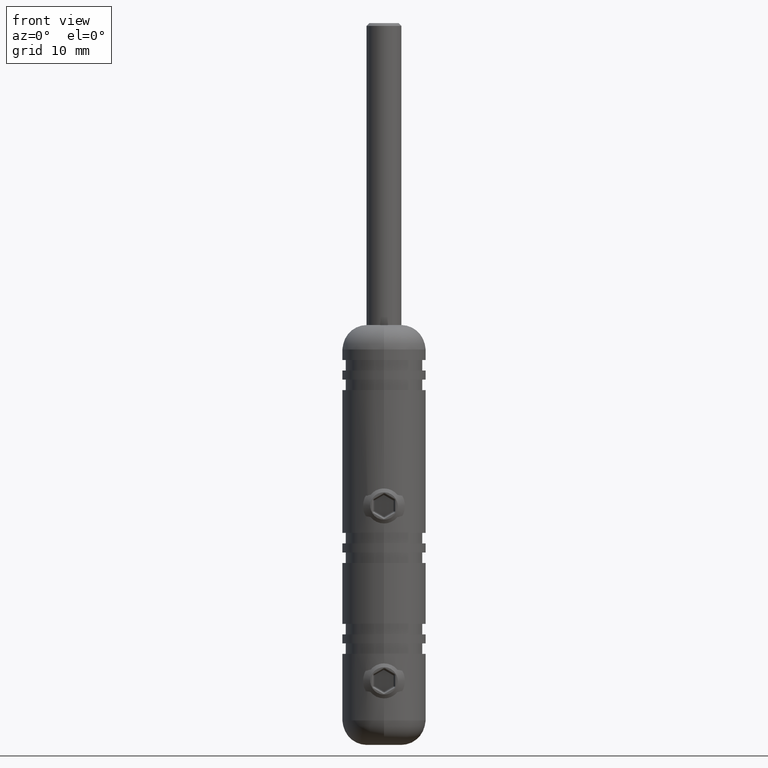
[diagram: clean part render]
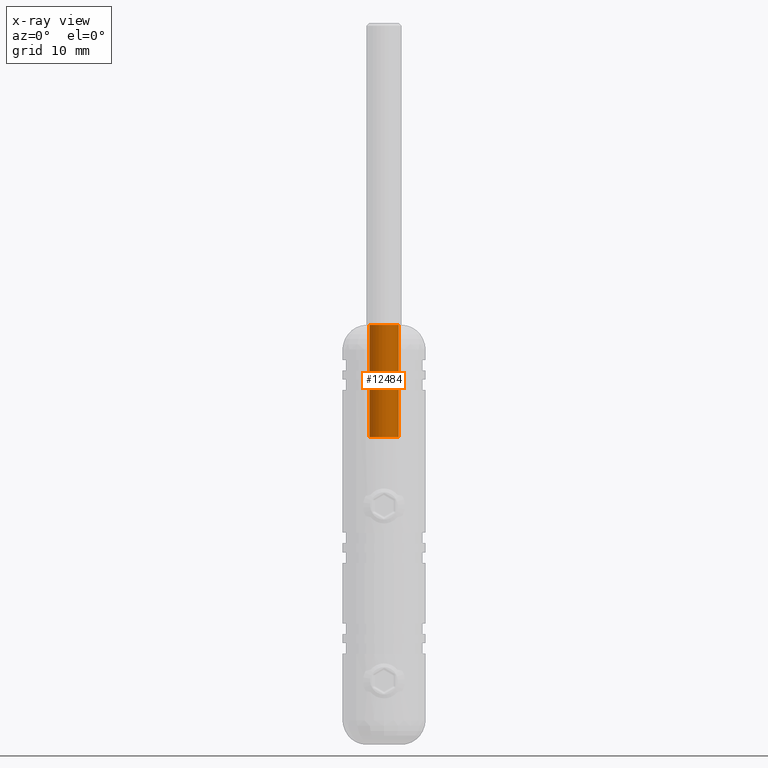
[diagram: x-ray — body ghosted, one internal face saturated and labeled with its STEP entity id]
A machine part, front view, then the same camera in x-ray: the body is ghosted and one INTERNAL B-rep face — a face not visible from any outside direction — is saturated and labeled: STEP entity #12484.
In plain terms, the highlighted cylindrical surface (edge-blend (fillet) strip) has radius 2.1 mm, axis along (0, 0, 1).
Its self-contained STEP definition (entity closure, byte-faithful):
#43 = VERTEX_POINT ( 'NONE', #5213 ) ;
#443 = CARTESIAN_POINT ( 'NONE',  ( 0.0000000000000000000, 3.709435617530339000E-015, 30.00000000000000000 ) ) ;
#872 = FACE_OUTER_BOUND ( 'NONE', #13390, .T. ) ;
#893 = VERTEX_POINT ( 'NONE', #3645 ) ;
#1386 = EDGE_CURVE ( 'NONE', #43, #893, #16346, .T. ) ;
#1494 = ORIENTED_EDGE ( 'NONE', *, *, #16263, .T. ) ;
#2173 = DIRECTION ( 'NONE',  ( -0.0000000000000000000, -0.0000000000000000000, 1.000000000000000000 ) ) ;
#2243 = LINE ( 'NONE', #10005, #15222 ) ;
#2718 = EDGE_CURVE ( 'NONE', #43, #4795, #6133, .T. ) ;
#2994 = DIRECTION ( 'NONE',  ( -0.0000000000000000000, -0.0000000000000000000, 1.000000000000000000 ) ) ;
#3645 = CARTESIAN_POINT ( 'NONE',  ( -2.099999999999997900, 3.966611445351282600E-015, 30.00000000000000000 ) ) ;
#4180 = CIRCLE ( 'NONE', #16073, 2.099999999999997900 ) ;
#4795 = VERTEX_POINT ( 'NONE', #15598 ) ;
#5213 = CARTESIAN_POINT ( 'NONE',  ( -2.099999999999995600, 3.966611445351282600E-015, 13.99999999999999800 ) ) ;
#6133 = CIRCLE ( 'NONE', #12560, 2.099999999999995600 ) ;
#6680 = ORIENTED_EDGE ( 'NONE', *, *, #1386, .T. ) ;
#7101 = DIRECTION ( 'NONE',  ( 1.000000000000000000, 0.0000000000000000000, 0.0000000000000000000 ) ) ;
#7223 = CYLINDRICAL_SURFACE ( 'NONE', #11374, 2.099999999999997000 ) ;
#7656 = DIRECTION ( 'NONE',  ( 1.000000000000000000, 0.0000000000000000000, 0.0000000000000000000 ) ) ;
#8036 = DIRECTION ( 'NONE',  ( -0.0000000000000000000, -0.0000000000000000000, 1.000000000000000000 ) ) ;
#8498 = VECTOR ( 'NONE', #8036, 1000.000000000000000 ) ;
#10005 = CARTESIAN_POINT ( 'NONE',  ( 2.099999999999997000, 3.709435617530339000E-015, 30.00000000000000000 ) ) ;
#11374 = AXIS2_PLACEMENT_3D ( 'NONE', #15110, #2173, #7656 ) ;
#11565 = DIRECTION ( 'NONE',  ( -0.0000000000000000000, -0.0000000000000000000, 1.000000000000000000 ) ) ;
#12157 = CARTESIAN_POINT ( 'NONE',  ( 2.099999999999997900, 3.709435617530339000E-015, 30.00000000000000000 ) ) ;
#12231 = EDGE_CURVE ( 'NONE', #4795, #15601, #2243, .T. ) ;
#12484 = ADVANCED_FACE ( 'NONE', ( #872 ), #7223, .F. ) ;
#12560 = AXIS2_PLACEMENT_3D ( 'NONE', #13394, #15012, #7101 ) ;
#13390 = EDGE_LOOP ( 'NONE', ( #14145, #6680, #1494, #14383 ) ) ;
#13394 = CARTESIAN_POINT ( 'NONE',  ( 0.0000000000000000000, 3.709435617530339000E-015, 13.99999999999999800 ) ) ;
#14145 = ORIENTED_EDGE ( 'NONE', *, *, #2718, .F. ) ;
#14172 = CARTESIAN_POINT ( 'NONE',  ( -2.099999999999997000, 3.966611445351282600E-015, 30.00000000000000000 ) ) ;
#14383 = ORIENTED_EDGE ( 'NONE', *, *, #12231, .F. ) ;
#14572 = DIRECTION ( 'NONE',  ( 1.000000000000000000, 0.0000000000000000000, 0.0000000000000000000 ) ) ;
#15012 = DIRECTION ( 'NONE',  ( -0.0000000000000000000, -0.0000000000000000000, 1.000000000000000000 ) ) ;
#15110 = CARTESIAN_POINT ( 'NONE',  ( 0.0000000000000000000, 3.709435617530339000E-015, 30.00000000000000000 ) ) ;
#15222 = VECTOR ( 'NONE', #11565, 1000.000000000000000 ) ;
#15598 = CARTESIAN_POINT ( 'NONE',  ( 2.099999999999995600, 3.709435617530339000E-015, 13.99999999999999800 ) ) ;
#15601 = VERTEX_POINT ( 'NONE', #12157 ) ;
#16073 = AXIS2_PLACEMENT_3D ( 'NONE', #443, #2994, #14572 ) ;
#16263 = EDGE_CURVE ( 'NONE', #893, #15601, #4180, .T. ) ;
#16346 = LINE ( 'NONE', #14172, #8498 ) ;